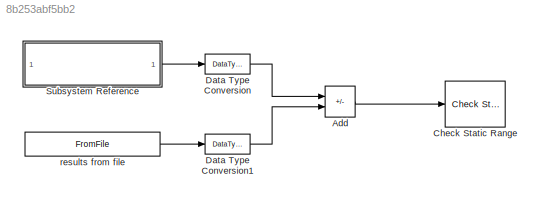
MODEL slx_8b253abf5bb2
KIND model
CONFIG AbsTol = auto
CONFIG EnableMultiTasking = off
CONFIG FixedStep = 1
CONFIG MaxStep = auto
CONFIG MinStep = auto
CONFIG RelTol = 1e-3
CONFIG SampleTimeConstraint = Unconstrained
CONFIG SolverName = FixedStepDiscrete
CONFIG StartTime = 0.0
CONFIG StopTime = 5
BLOCK [Sum] Add
  IconShape = rectangular
  Inputs = +-
  OutDataTypeStr = int8
BLOCK [Reference] Check Static Range  REF=simulink/Model
Verification/Check 
Static Range
  Description = -0.1 <= u <= 0
  SourceBlock = simulink/Model\nVerification/Check \nStatic Range
  SourceType = Checks_SRange
BLOCK [DataTypeConversion] Data Type Conversion
  OutDataTypeStr = uint8
  RndMeth = Floor
  SaturateOnIntegerOverflow = off
BLOCK [DataTypeConversion] Data Type Conversion1
  OutDataTypeStr = uint8
  RndMeth = Floor
  SaturateOnIntegerOverflow = off
BLOCK [SubSystem] Subsystem Reference
  ReferencedSubsystem = detectStartUp
BLOCK [FromFile] results from file
  FileName = results_detectStartUp_5sec.mat
  SampleTime = 0
LINE Add:1 -> Check Static Range:1
LINE Data Type Conversion1:1 -> Add:2
LINE Data Type Conversion:1 -> Add:1
LINE Subsystem Reference:1 -> Data Type Conversion:1
LINE results from file:1 -> Data Type Conversion1:1
